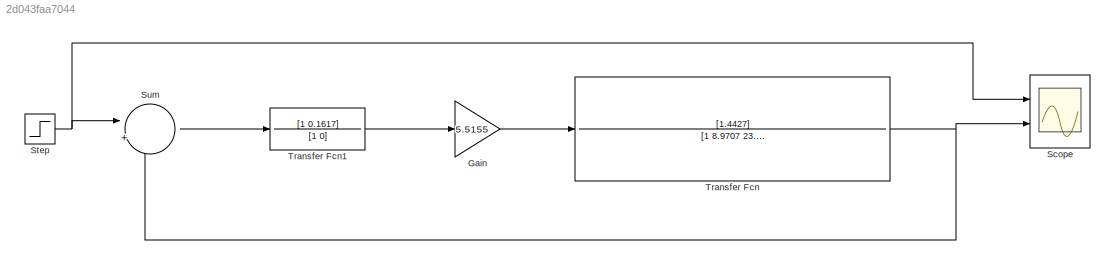
MODEL slx_2d043faa7044
KIND model
CONFIG AbsTol = auto
CONFIG EnableMultiTasking = off
CONFIG FixedStep = auto
CONFIG MaxStep = auto
CONFIG MinStep = auto
CONFIG RelTol = 1e-3
CONFIG SampleTimeConstraint = Unconstrained
CONFIG SolverName = VariableStepAuto
CONFIG StartTime = 0.0
CONFIG StopTime = 70
BLOCK [Gain] Gain
  Gain = 5.5155
BLOCK [Scope] Scope
  Floating = off
  NumInputPorts = 2
  Ports = [2]
  ScopeSpecificationString = Simulink.scopes.TimeScopeBlockCfg('CurrentConfiguration', extmgr.ConfigurationSet(extmgr.Configuration('Core','General UI',true),extmgr.Configuration('Core','Source UI',true),extmgr.Configuration('Sources','WiredSimulink',true),extmgr.Configuration('Visuals','Time Domain',true,'SerializedDisplays',{struct('MinYLimReal','-0.14939','MaxYLimReal','1.34453','YLabelReal','','MinYLimMag','0.00000','MaxY...<+1395ch>
BLOCK [Step] Step
  SampleTime = 0
BLOCK [Sum] Sum
  Inputs = |+-
  Ports = [2, 1]
BLOCK [TransferFcn] Transfer Fcn
  Denominator = [1 8.9707 23.2351 17.8070 2.3091]
  Numerator = [1.4427]
BLOCK [TransferFcn] Transfer Fcn1
  Denominator = [1 0]
  Numerator = [1 0.1617]
LINE Gain:1 -> Transfer Fcn:1
NET Step:1 -> Scope:1, Sum:1
LINE Sum:1 -> Transfer Fcn1:1
LINE Transfer Fcn1:1 -> Gain:1
NET Transfer Fcn:1 -> Scope:2, Sum:2
note: NET lines group one-source signal fan-out (src -> all destinations, sorted); 1:1 wires keep LINE
